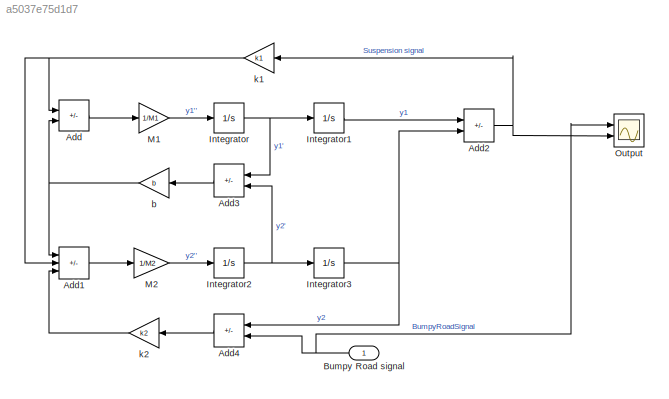
MODEL slx_a5037e75d1d7
KIND model
CONFIG AbsTol = auto
CONFIG EnableMultiTasking = off
CONFIG FixedStep = auto
CONFIG MaxStep = auto
CONFIG MinStep = auto
CONFIG RelTol = 1e-3
CONFIG SampleTimeConstraint = Unconstrained
CONFIG SolverName = VariableStepAuto
CONFIG StartTime = 0.0
CONFIG StopTime = 100
BLOCK [Sum] Add
  IconShape = rectangular
  Inputs = --
  Ports = [2, 1]
BLOCK [Sum] Add1
  IconShape = rectangular
  Inputs = ++-
  Ports = [3, 1]
BLOCK [Sum] Add2
  IconShape = rectangular
  Inputs = +-
  Ports = [2, 1]
BLOCK [Sum] Add3
  IconShape = rectangular
  Inputs = +-
  Ports = [2, 1]
BLOCK [Sum] Add4
  IconShape = rectangular
  Inputs = +-
  Ports = [2, 1]
BLOCK [Inport] Bumpy Road signal
BLOCK [Integrator] Integrator
  Ports = [1, 1]
BLOCK [Integrator] Integrator1
  Ports = [1, 1]
BLOCK [Integrator] Integrator2
  Ports = [1, 1]
BLOCK [Integrator] Integrator3
  Ports = [1, 1]
BLOCK [Gain] M1
  Gain = 1/M1
BLOCK [Gain] M2
  Gain = 1/M2
BLOCK [Scope] Output
  Floating = off
  NumInputPorts = 2
  Ports = [2]
  ScopeSpecificationString = Simulink.scopes.TimeScopeBlockCfg('CurrentConfiguration', extmgr.ConfigurationSet(extmgr.Configuration('Core','General UI',true),extmgr.Configuration('Core','Source UI',true),extmgr.Configuration('Sources','WiredSimulink',true),extmgr.Configuration('Visuals','Time Domain',true,'SerializedDisplays',{struct('MinYLimReal','-0.625','MaxYLimReal','5.625','YLabelReal','','MinYLimMag','0.00000','MaxYLimM...<+1985ch>
BLOCK [Gain] b
  Gain = b
BLOCK [Gain] k1
  Gain = k1
BLOCK [Gain] k2
  Gain = k2
LINE Add1:1 -> M2:1
NET Add2:1 -> Output:2, k1:1
LINE Add3:1 -> b:1
LINE Add4:1 -> k2:1
LINE Add:1 -> M1:1
NET Bumpy Road signal:1 -> Add4:2, Output:1
LINE Integrator1:1 -> Add2:1
NET Integrator2:1 -> Add3:2, Integrator3:1
NET Integrator3:1 -> Add2:2, Add4:1
NET Integrator:1 -> Add3:1, Integrator1:1
LINE M1:1 -> Integrator:1
LINE M2:1 -> Integrator2:1
NET b:1 -> Add1:1, Add:2
NET k1:1 -> Add1:2, Add:1
LINE k2:1 -> Add1:3
note: NET lines group one-source signal fan-out (src -> all destinations, sorted); 1:1 wires keep LINE
